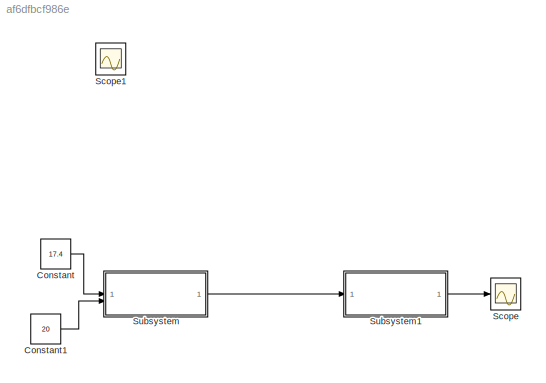
MODEL slx_af6dfbcf986e
KIND model
CONFIG AbsTol = auto
CONFIG EnableMultiTasking = off
CONFIG FixedStep = auto
CONFIG MaxStep = auto
CONFIG MinStep = auto
CONFIG RelTol = 1e-3
CONFIG SampleTimeConstraint = Unconstrained
CONFIG SolverName = VariableStepAuto
CONFIG StartTime = 0.0
CONFIG StopTime = 1
BLOCK [Constant] Constant
  Value = 17.4
BLOCK [Constant] Constant1
  Value = 20
BLOCK [Scope] Scope
  Floating = off
  NumInputPorts = 1
  ScopeSpecificationString = Simulink.scopes.TimeScopeBlockCfg('CurrentConfiguration', extmgr.ConfigurationSet(extmgr.Configuration('Core','General UI',true),extmgr.Configuration('Core','Source UI',true),extmgr.Configuration('Sources','WiredSimulink',true),extmgr.Configuration('Visuals','Time Domain',true,'SerializedDisplays',{struct('MinYLimReal','0.70153','MaxYLimReal','0.90153','YLabelReal','','MinYLimMag','0.70153','MaxYL...<+1389ch>
BLOCK [Scope] Scope1
  Floating = off
  IOType = viewer
  NumInputPorts = 1
  ScopeSpecificationString = Simulink.scopes.TimeScopeBlockCfg('CurrentConfiguration', extmgr.ConfigurationSet(extmgr.Configuration('Core','General UI',true),extmgr.Configuration('Core','Source UI',true),extmgr.Configuration('Sources','WiredSimulink',true,'DataLoggingVariableName','ScopeData1'),extmgr.Configuration('Visuals','Time Domain',true,'SerializedDisplays',{struct('MinYLimReal','-0.125','MaxYLimReal','1.125','YLabelRe...<+1347ch>
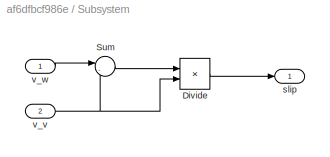
BLOCK [SubSystem] Subsystem
BLOCK [Product] Subsystem/Divide
  Inputs = */
BLOCK [Sum] Subsystem/Sum
  Inputs = |-+
BLOCK [Outport] Subsystem/slip
BLOCK [Inport] Subsystem/v_v
  Port = 2
BLOCK [Inport] Subsystem/v_w
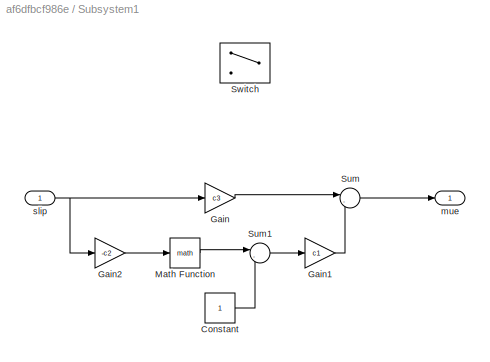
BLOCK [SubSystem] Subsystem1
BLOCK [Constant] Subsystem1/Constant
BLOCK [Gain] Subsystem1/Gain
  Gain = c3
BLOCK [Gain] Subsystem1/Gain1
  Gain = c1
BLOCK [Gain] Subsystem1/Gain2
  Gain = -c2
BLOCK [Math] Subsystem1/Math Function
BLOCK [Sum] Subsystem1/Sum
  Inputs = |-+
BLOCK [Sum] Subsystem1/Sum1
  Inputs = |-+
BLOCK [Switch] Subsystem1/Switch
  Criteria = u2 > Threshold
  InputSameDT = off
  SaturateOnIntegerOverflow = off
BLOCK [Outport] Subsystem1/mue
BLOCK [Inport] Subsystem1/slip
LINE Constant1:1 -> Subsystem:2
LINE Constant:1 -> Subsystem:1
LINE Subsystem/Divide:1 -> Subsystem/slip:1
LINE Subsystem/Sum:1 -> Subsystem/Divide:1
NET Subsystem/v_v:1 -> Subsystem/Divide:2, Subsystem/Sum:2
LINE Subsystem/v_w:1 -> Subsystem/Sum:1
LINE Subsystem1/Constant:1 -> Subsystem1/Sum1:2
LINE Subsystem1/Gain1:1 -> Subsystem1/Sum:2
LINE Subsystem1/Gain2:1 -> Subsystem1/Math Function:1
LINE Subsystem1/Gain:1 -> Subsystem1/Sum:1
LINE Subsystem1/Math Function:1 -> Subsystem1/Sum1:1
LINE Subsystem1/Sum1:1 -> Subsystem1/Gain1:1
LINE Subsystem1/Sum:1 -> Subsystem1/mue:1
NET Subsystem1/slip:1 -> Subsystem1/Gain2:1, Subsystem1/Gain:1
LINE Subsystem1:1 -> Scope:1
LINE Subsystem:1 -> Subsystem1:1
note: NET lines group one-source signal fan-out (src -> all destinations, sorted); 1:1 wires keep LINE
